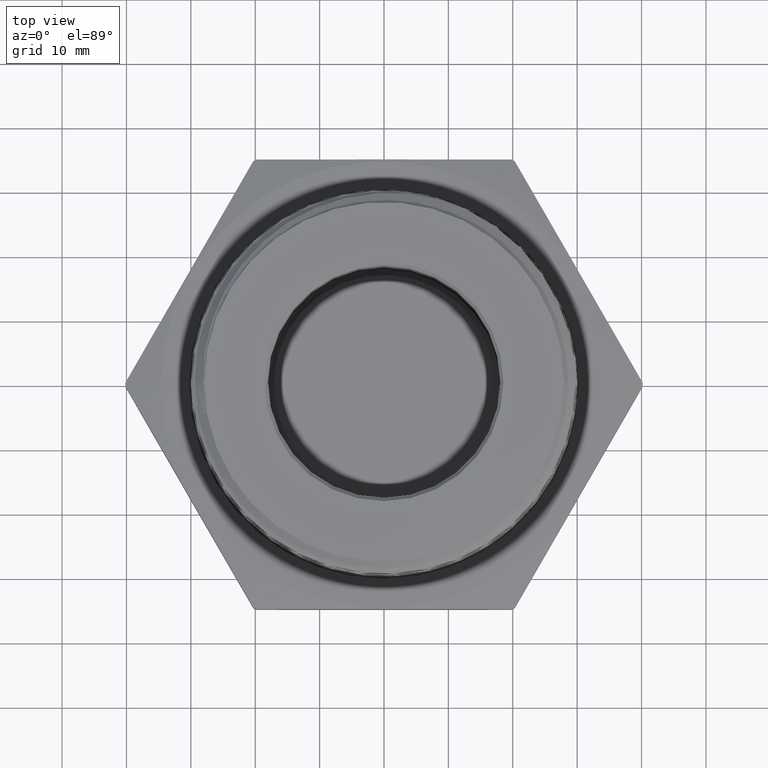
[diagram: clean part render]
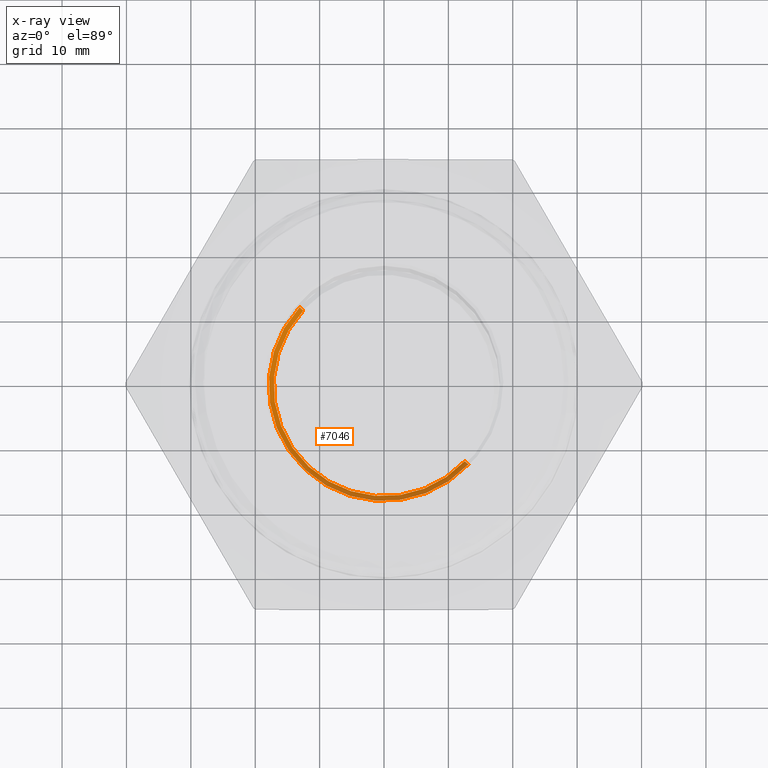
[diagram: x-ray — body ghosted, one internal face saturated and labeled with its STEP entity id]
A machine part, top view, then the same camera in x-ray: the body is ghosted and one INTERNAL B-rep face — a face not visible from any outside direction — is saturated and labeled: STEP entity #7046.
In plain terms, the highlighted conical surface has half-angle 45 deg.
Its self-contained STEP definition (entity closure, byte-faithful):
#312 = CARTESIAN_POINT ( 'NONE',  ( 0.1166800539378861200, -0.1164497935006357400, 0.02999999999999981500 ) ) ;
#313 = DIRECTION ( 'NONE',  ( -0.0000000000000000000, -0.0000000000000000000, 1.000000000000000000 ) ) ;
#314 = DIRECTION ( 'NONE',  ( 1.000000000000000000, 0.0000000000000000000, 0.0000000000000000000 ) ) ;
#392 = AXIS2_PLACEMENT_3D ( 'NONE', #5357, #5358, #5359 ) ;
#429 = CARTESIAN_POINT ( 'NONE',  ( -0.5583199460621138800, -0.1164497935006356500, 0.0000000000000000000 ) ) ;
#1156 = DIRECTION ( 'NONE',  ( -0.7071067811865491300, 8.659560562354952600E-017, 0.7071067811865459100 ) ) ;
#1157 = CARTESIAN_POINT ( 'NONE',  ( 0.8216800539378861200, -0.1164497935006357400, 0.02999999999999981500 ) ) ;
#1161 = CARTESIAN_POINT ( 'NONE',  ( -0.5883199460621138000, -0.1164497935006356500, 0.02999999999999981500 ) ) ;
#1162 = DIRECTION ( 'NONE',  ( 0.7071067811865491300, 0.0000000000000000000, 0.7071067811865459100 ) ) ;
#2875 = ORIENTED_EDGE ( 'NONE', *, *, #7081, .T. ) ;
#2881 = ORIENTED_EDGE ( 'NONE', *, *, #3289, .F. ) ;
#2882 = ORIENTED_EDGE ( 'NONE', *, *, #4831, .F. ) ;
#2884 = ORIENTED_EDGE ( 'NONE', *, *, #7083, .F. ) ;
#2965 = CIRCLE ( 'NONE', #3430, 0.7049999999999999600 ) ;
#3038 = CIRCLE ( 'NONE', #392, 0.6750000000000000400 ) ;
#3047 = CARTESIAN_POINT ( 'NONE',  ( 0.8216800539378861200, -0.1164497935006356500, 0.02999999999999981500 ) ) ;
#3223 = VERTEX_POINT ( 'NONE', #7108 ) ;
#3225 = VERTEX_POINT ( 'NONE', #4849 ) ;
#3226 = VERTEX_POINT ( 'NONE', #429 ) ;
#3227 = VERTEX_POINT ( 'NONE', #3047 ) ;
#3289 = EDGE_CURVE ( 'NONE', #3225, #3227, #2965, .T. ) ;
#3339 = EDGE_LOOP ( 'NONE', ( #2884, #2882, #2875, #2881 ) ) ;
#3430 = AXIS2_PLACEMENT_3D ( 'NONE', #312, #313, #314 ) ;
#4831 = EDGE_CURVE ( 'NONE', #3223, #3226, #3038, .T. ) ;
#4849 = CARTESIAN_POINT ( 'NONE',  ( -0.5883199460621138000, -0.1164497935006357400, 0.02999999999999981500 ) ) ;
#5357 = CARTESIAN_POINT ( 'NONE',  ( 0.1166800539378861200, -0.1164497935006357400, 0.0000000000000000000 ) ) ;
#5358 = DIRECTION ( 'NONE',  ( 0.0000000000000000000, -0.0000000000000000000, -1.000000000000000000 ) ) ;
#5359 = DIRECTION ( 'NONE',  ( 1.000000000000000000, 0.0000000000000000000, 0.0000000000000000000 ) ) ;
#5503 = AXIS2_PLACEMENT_3D ( 'NONE', #6753, #6754, #6751 ) ;
#6751 = DIRECTION ( 'NONE',  ( 1.000000000000000000, 0.0000000000000000000, 0.0000000000000000000 ) ) ;
#6753 = CARTESIAN_POINT ( 'NONE',  ( 0.1166800539378861200, -0.1164497935006357400, 0.02999999999999981500 ) ) ;
#6754 = DIRECTION ( 'NONE',  ( -0.0000000000000000000, -0.0000000000000000000, 1.000000000000000000 ) ) ;
#7046 = ADVANCED_FACE ( 'NONE', ( #7232 ), #7242, .T. ) ;
#7081 = EDGE_CURVE ( 'NONE', #3223, #3227, #8035, .T. ) ;
#7083 = EDGE_CURVE ( 'NONE', #3226, #3225, #8041, .T. ) ;
#7108 = CARTESIAN_POINT ( 'NONE',  ( 0.7916800539378862100, -0.1164497935006357400, 0.0000000000000000000 ) ) ;
#7232 = FACE_OUTER_BOUND ( 'NONE', #3339, .T. ) ;
#7242 = CONICAL_SURFACE ( 'NONE', #5503, 0.7049999999999999600, 0.7853981633974506100 ) ;
#8035 = LINE ( 'NONE', #1157, #8040 ) ;
#8040 = VECTOR ( 'NONE', #1162, 39.37007874015748100 ) ;
#8041 = LINE ( 'NONE', #1161, #8043 ) ;
#8043 = VECTOR ( 'NONE', #1156, 39.37007874015748100 ) ;